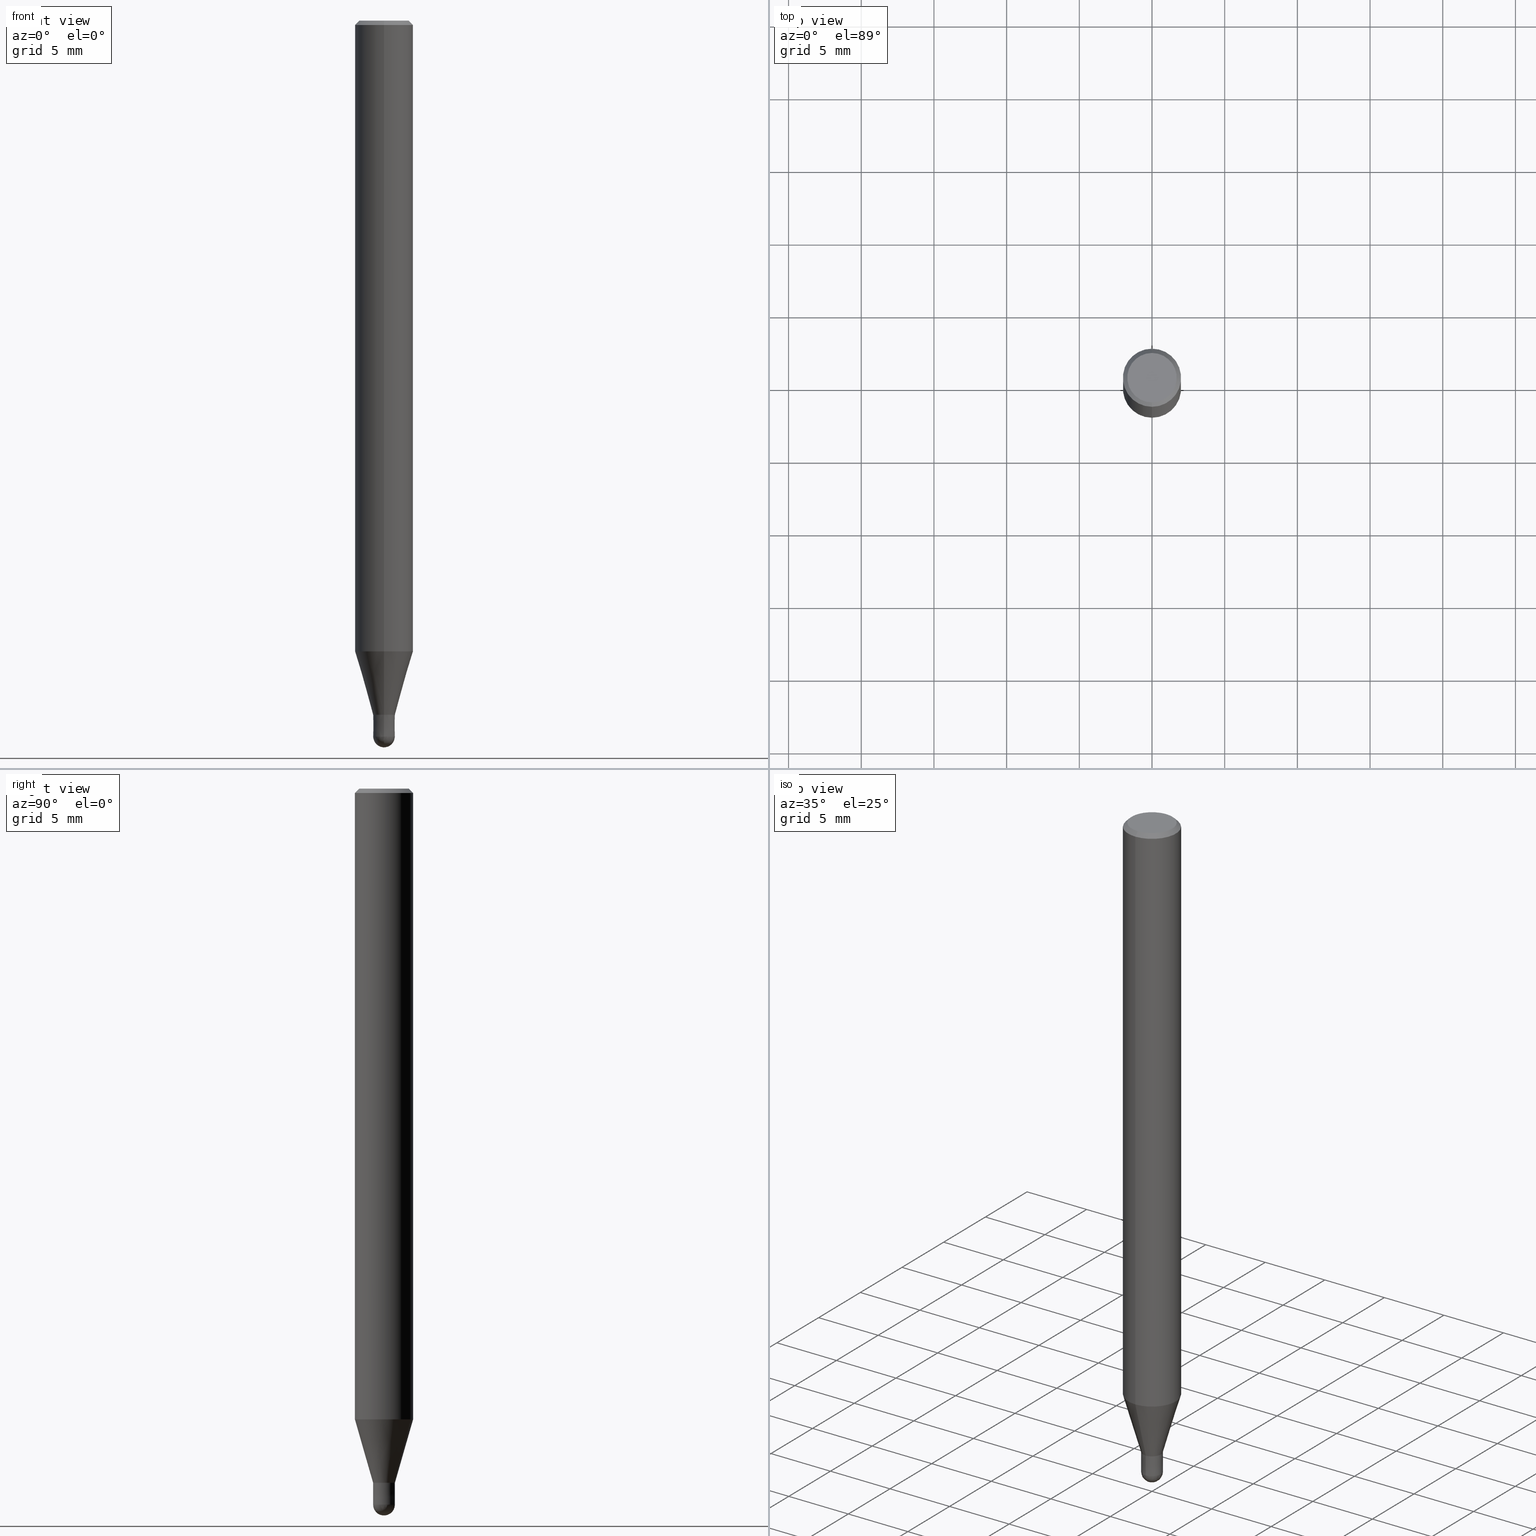
[diagram: canonical four-view strip — front | top / right | iso, engineering-drawing reading convention]
A machine part, canonical four-view strip (front | top / right | iso — engineering-drawing reading convention). The complete STEP part file that produces these views, byte-faithful:
ISO-10303-21;
HEADER;
FILE_DESCRIPTION(('no description'),'unknown implementation level');
FILE_NAME('CFB3015-0225-Huellk.stp','  ',('CIMSOURCE GmbH'),('CADClick - KiM GmbH - www.kimweb.de'),'unknown preprocess','ACIS','unknown authorization');
FILE_SCHEMA(('automotive_design'));
ENDSEC;
DATA;
#1=MECHANICAL_DESIGN_GEOMETRIC_PRESENTATION_REPRESENTATION(' ',(#14,#15,#16,#17,#18,#19,#20,#21,#22,#23,#24,#25,#26,#27,#28,#29,#30,#31,#32,#33,#34,#35,#36,#37,#38,#39,#40,#41,#42,#43,#44,#45,#46,#47,#48,#49,#50,#51,#52,#53,#54,#55,#56,#57,#58,#59,#60,#61,#62,#63,#64,#65,#66),#10);
#2=PRODUCT_DEFINITION_CONTEXT('',#67,'design');
#3=APPLICATION_PROTOCOL_DEFINITION('INTERNATIONAL STANDARD','automotive_design',1994,#67);
#4=PRODUCT_CATEGORY_RELATIONSHIP('NONE','NONE',#68,#69);
#5=SHAPE_DEFINITION_REPRESENTATION(#70,#71);
#6=PRODUCT_DEFINITION_CONTEXT('',#72,'design');
#7=APPLICATION_PROTOCOL_DEFINITION('INTERNATIONAL STANDARD','automotive_design',1994,#72);
#8=PRODUCT_CATEGORY_RELATIONSHIP('NONE','NONE',#73,#74);
#9=SHAPE_DEFINITION_REPRESENTATION(#75,#76);
#10= (GEOMETRIC_REPRESENTATION_CONTEXT(3)GLOBAL_UNCERTAINTY_ASSIGNED_CONTEXT((#79))GLOBAL_UNIT_ASSIGNED_CONTEXT((#81,#82,#83))REPRESENTATION_CONTEXT('NONE','WORKSPACE'));
#14=STYLED_ITEM('',(#85),#86);
#15=STYLED_ITEM('',(#87),#88);
#16=STYLED_ITEM('',(#89),#90);
#17=STYLED_ITEM('',(#91),#92);
#18=STYLED_ITEM('',(#93),#94);
#19=STYLED_ITEM('',(#95),#96);
#20=STYLED_ITEM('',(#97),#98);
#21=STYLED_ITEM('',(#99),#100);
#22=STYLED_ITEM('',(#101),#102);
#23=STYLED_ITEM('',(#103),#104);
#24=STYLED_ITEM('',(#105),#106);
#25=STYLED_ITEM('',(#107),#108);
#26=STYLED_ITEM('',(#109),#110);
#27=STYLED_ITEM('',(#111),#112);
#28=STYLED_ITEM('',(#113),#114);
#29=STYLED_ITEM('',(#115),#116);
#30=STYLED_ITEM('',(#117),#118);
#31=STYLED_ITEM('',(#119),#120);
#32=STYLED_ITEM('',(#121),#122);
#33=STYLED_ITEM('',(#123),#124);
#34=STYLED_ITEM('',(#125),#126);
#35=STYLED_ITEM('',(#127),#128);
#36=STYLED_ITEM('',(#129),#130);
#37=STYLED_ITEM('',(#131),#132);
#38=STYLED_ITEM('',(#133),#134);
#39=STYLED_ITEM('',(#135),#136);
#40=STYLED_ITEM('',(#137),#138);
#41=STYLED_ITEM('',(#139),#140);
#42=STYLED_ITEM('',(#141),#142);
#43=STYLED_ITEM('',(#143),#144);
#44=STYLED_ITEM('',(#145),#146);
#45=STYLED_ITEM('',(#147),#148);
#46=STYLED_ITEM('',(#149),#150);
#47=STYLED_ITEM('',(#151),#152);
#48=STYLED_ITEM('',(#153),#154);
#49=STYLED_ITEM('',(#155),#156);
#50=STYLED_ITEM('',(#157),#158);
#51=STYLED_ITEM('',(#159),#160);
#52=STYLED_ITEM('',(#161),#162);
#53=STYLED_ITEM('',(#163),#164);
#54=STYLED_ITEM('',(#165),#166);
#55=STYLED_ITEM('',(#167),#168);
#56=STYLED_ITEM('',(#169),#170);
#57=STYLED_ITEM('',(#171),#172);
#58=STYLED_ITEM('',(#173),#174);
#59=STYLED_ITEM('',(#175),#176);
#60=STYLED_ITEM('',(#177),#178);
#61=STYLED_ITEM('',(#179),#180);
#62=STYLED_ITEM('',(#181),#182);
#63=STYLED_ITEM('',(#183),#184);
#64=STYLED_ITEM('',(#185),#186);
#65=STYLED_ITEM('',(#187),#188);
#66=STYLED_ITEM('',(#189),#190);
#67=APPLICATION_CONTEXT(' ');
#68=PRODUCT_CATEGORY('part','NONE');
#69=PRODUCT_RELATED_PRODUCT_CATEGORY('detail',' ',(#191));
#70=PRODUCT_DEFINITION_SHAPE('NONE','NONE',#192);
#71=ADVANCED_BREP_SHAPE_REPRESENTATION('1',(#142,#193),#10);
#72=APPLICATION_CONTEXT(' ');
#73=PRODUCT_CATEGORY('part','NONE');
#74=PRODUCT_RELATED_PRODUCT_CATEGORY('detail',' ',(#194));
#75=PRODUCT_DEFINITION_SHAPE('NONE','NONE',#195);
#76=ADVANCED_BREP_SHAPE_REPRESENTATION('2',(#122,#196),#10);
#79=UNCERTAINTY_MEASURE_WITH_UNIT(LENGTH_MEASURE(1.0E-006),#81,'','');
#81= (CONVERSION_BASED_UNIT('MILLIMETRE',#199)LENGTH_UNIT()NAMED_UNIT(#202));
#82= (NAMED_UNIT(#204)PLANE_ANGLE_UNIT()SI_UNIT($,.RADIAN.));
#83= (NAMED_UNIT(#204)SOLID_ANGLE_UNIT()SI_UNIT($,.STERADIAN.));
#85=PRESENTATION_STYLE_ASSIGNMENT((#210));
#86=ADVANCED_FACE('',(#211,#212),#213,.T.);
#87=PRESENTATION_STYLE_ASSIGNMENT((#214));
#88=ADVANCED_FACE('',(#215),#216,.T.);
#89=PRESENTATION_STYLE_ASSIGNMENT((#217));
#90=VERTEX_POINT('',#218);
#91=PRESENTATION_STYLE_ASSIGNMENT((#219));
#92=EDGE_CURVE('',#132,#114,#220,.T.);
#93=PRESENTATION_STYLE_ASSIGNMENT((#221));
#94=EDGE_CURVE('',#180,#162,#222,.T.);
#95=PRESENTATION_STYLE_ASSIGNMENT((#223));
#96=VERTEX_POINT('',#224);
#97=PRESENTATION_STYLE_ASSIGNMENT((#225));
#98=EDGE_CURVE('',#164,#146,#226,.T.);
#99=PRESENTATION_STYLE_ASSIGNMENT((#227));
#100=EDGE_CURVE('',#158,#138,#228,.T.);
#101=PRESENTATION_STYLE_ASSIGNMENT((#229));
#102=ADVANCED_FACE('',(#230),#231,.T.);
#103=PRESENTATION_STYLE_ASSIGNMENT((#232));
#104=EDGE_CURVE('',#152,#164,#233,.T.);
#105=PRESENTATION_STYLE_ASSIGNMENT((#234));
#106=ADVANCED_FACE('',(#235),#236,.T.);
#107=PRESENTATION_STYLE_ASSIGNMENT((#237));
#108=EDGE_CURVE('',#162,#180,#238,.T.);
#109=PRESENTATION_STYLE_ASSIGNMENT((#239));
#110=ADVANCED_FACE('',(#240),#241,.T.);
#111=PRESENTATION_STYLE_ASSIGNMENT((#242));
#112=ADVANCED_FACE('',(#243),#244,.T.);
#113=PRESENTATION_STYLE_ASSIGNMENT((#245));
#114=VERTEX_POINT('',#246);
#115=PRESENTATION_STYLE_ASSIGNMENT((#247));
#116=EDGE_CURVE('',#162,#114,#248,.T.);
#117=PRESENTATION_STYLE_ASSIGNMENT((#249));
#118=EDGE_CURVE('',#168,#132,#250,.T.);
#119=PRESENTATION_STYLE_ASSIGNMENT((#251));
#120=EDGE_CURVE('',#186,#138,#252,.T.);
#121=PRESENTATION_STYLE_ASSIGNMENT((#253));
#122=MANIFOLD_SOLID_BREP('2',#254);
#123=PRESENTATION_STYLE_ASSIGNMENT((#255));
#124=EDGE_CURVE('',#132,#180,#256,.T.);
#125=PRESENTATION_STYLE_ASSIGNMENT((#257));
#126=EDGE_CURVE('',#138,#186,#258,.T.);
#127=PRESENTATION_STYLE_ASSIGNMENT((#259));
#128=EDGE_CURVE('',#158,#190,#260,.T.);
#129=PRESENTATION_STYLE_ASSIGNMENT((#261));
#130=EDGE_CURVE('',#146,#164,#262,.T.);
#131=PRESENTATION_STYLE_ASSIGNMENT((#263));
#132=VERTEX_POINT('',#264);
#133=PRESENTATION_STYLE_ASSIGNMENT((#265));
#134=EDGE_CURVE('',#152,#90,#266,.T.);
#135=PRESENTATION_STYLE_ASSIGNMENT((#267));
#136=EDGE_CURVE('',#152,#90,#268,.T.);
#137=PRESENTATION_STYLE_ASSIGNMENT((#269));
#138=VERTEX_POINT('',#270);
#139=PRESENTATION_STYLE_ASSIGNMENT((#271));
#140=ADVANCED_FACE('',(#272),#273,.T.);
#141=PRESENTATION_STYLE_ASSIGNMENT((#274));
#142=MANIFOLD_SOLID_BREP('1',#275);
#143=PRESENTATION_STYLE_ASSIGNMENT((#276));
#144=EDGE_CURVE('',#114,#132,#277,.T.);
#145=PRESENTATION_STYLE_ASSIGNMENT((#278));
#146=VERTEX_POINT('',#279);
#147=PRESENTATION_STYLE_ASSIGNMENT((#280));
#148=ADVANCED_FACE('',(#281),#282,.T.);
#149=PRESENTATION_STYLE_ASSIGNMENT((#283));
#150=ADVANCED_FACE('',(#284),#285,.T.);
#151=PRESENTATION_STYLE_ASSIGNMENT((#286));
#152=VERTEX_POINT('',#287);
#153=PRESENTATION_STYLE_ASSIGNMENT((#288));
#154=ADVANCED_FACE('',(#289),#290,.T.);
#155=PRESENTATION_STYLE_ASSIGNMENT((#291));
#156=EDGE_CURVE('',#168,#96,#292,.T.);
#157=PRESENTATION_STYLE_ASSIGNMENT((#293));
#158=VERTEX_POINT('',#294);
#159=PRESENTATION_STYLE_ASSIGNMENT((#295));
#160=EDGE_CURVE('',#96,#168,#296,.T.);
#161=PRESENTATION_STYLE_ASSIGNMENT((#297));
#162=VERTEX_POINT('',#298);
#163=PRESENTATION_STYLE_ASSIGNMENT((#299));
#164=VERTEX_POINT('',#300);
#165=PRESENTATION_STYLE_ASSIGNMENT((#301));
#166=ADVANCED_FACE('',(#302),#303,.T.);
#167=PRESENTATION_STYLE_ASSIGNMENT((#304));
#168=VERTEX_POINT('',#305);
#169=PRESENTATION_STYLE_ASSIGNMENT((#306));
#170=EDGE_CURVE('',#186,#190,#307,.T.);
#171=PRESENTATION_STYLE_ASSIGNMENT((#308));
#172=EDGE_CURVE('',#114,#96,#309,.T.);
#173=PRESENTATION_STYLE_ASSIGNMENT((#310));
#174=ADVANCED_FACE('',(#311),#312,.T.);
#175=PRESENTATION_STYLE_ASSIGNMENT((#313));
#176=ADVANCED_FACE('',(#314),#315,.T.);
#177=PRESENTATION_STYLE_ASSIGNMENT((#316));
#178=ADVANCED_FACE('',(#317),#318,.T.);
#179=PRESENTATION_STYLE_ASSIGNMENT((#319));
#180=VERTEX_POINT('',#320);
#181=PRESENTATION_STYLE_ASSIGNMENT((#321));
#182=EDGE_CURVE('',#90,#152,#322,.T.);
#183=PRESENTATION_STYLE_ASSIGNMENT((#323));
#184=EDGE_CURVE('',#190,#158,#324,.T.);
#185=PRESENTATION_STYLE_ASSIGNMENT((#325));
#186=VERTEX_POINT('',#326);
#187=PRESENTATION_STYLE_ASSIGNMENT((#327));
#188=EDGE_CURVE('',#146,#90,#328,.T.);
#189=PRESENTATION_STYLE_ASSIGNMENT((#329));
#190=VERTEX_POINT('',#330);
#191=PRODUCT('1','1','PART-1-DESC',(#331));
#192=PRODUCT_DEFINITION('NONE','NONE',#332,#2);
#193=AXIS2_PLACEMENT_3D('',#333,#334,#335);
#194=PRODUCT('2','2','PART-2-DESC',(#336));
#195=PRODUCT_DEFINITION('NONE','NONE',#337,#6);
#196=AXIS2_PLACEMENT_3D('',#338,#339,#340);
#199=LENGTH_MEASURE_WITH_UNIT(LENGTH_MEASURE(1.0),#341);
#202=DIMENSIONAL_EXPONENTS(1.0,0.0,0.0,0.0,0.0,0.0,0.0);
#204=DIMENSIONAL_EXPONENTS(0.0,0.0,0.0,0.0,0.0,0.0,0.0);
#210=SURFACE_STYLE_USAGE(.BOTH.,#342);
#211=FACE_OUTER_BOUND('',#343,.T.);
#212=FACE_BOUND('',#344,.T.);
#213=PLANE('',#345);
#214=SURFACE_STYLE_USAGE(.BOTH.,#346);
#215=FACE_OUTER_BOUND('',#347,.T.);
#216=SPHERICAL_SURFACE('',#348,0.750000000000001);
#217=POINT_STYLE(' ',#349,POSITIVE_LENGTH_MEASURE(1.0E-006),#350);
#218=CARTESIAN_POINT('',(0.0,0.75,-49.25));
#219=CURVE_STYLE('',#351,POSITIVE_LENGTH_MEASURE(1.0E-006),#352);
#220=CIRCLE('',#353,2.0);
#221=CURVE_STYLE('',#354,POSITIVE_LENGTH_MEASURE(1.0E-006),#355);
#222=CIRCLE('',#356,2.0);
#223=POINT_STYLE(' ',#357,POSITIVE_LENGTH_MEASURE(1.0E-006),#358);
#224=CARTESIAN_POINT('',(2.08183080149804E-016,-1.7,0.0));
#225=CURVE_STYLE('',#359,POSITIVE_LENGTH_MEASURE(1.0E-006),#360);
#226=CIRCLE('',#361,0.7499);
#227=CURVE_STYLE('',#362,POSITIVE_LENGTH_MEASURE(1.0E-006),#363);
#228=LINE('',#364,#365);
#229=SURFACE_STYLE_USAGE(.BOTH.,#366);
#230=FACE_OUTER_BOUND('',#367,.T.);
#231=CONICAL_SURFACE('',#368,1.37495,0.279268973819818);
#232=CURVE_STYLE('',#369,POSITIVE_LENGTH_MEASURE(1.0E-006),#370);
#233=LINE('',#371,#372);
#234=SURFACE_STYLE_USAGE(.BOTH.,#373);
#235=FACE_OUTER_BOUND('',#374,.T.);
#236=CYLINDRICAL_SURFACE('',#375,2.0);
#237=CURVE_STYLE('',#376,POSITIVE_LENGTH_MEASURE(1.0E-006),#377);
#238=CIRCLE('',#378,2.0);
#239=SURFACE_STYLE_USAGE(.BOTH.,#379);
#240=FACE_OUTER_BOUND('',#380,.T.);
#241=CYLINDRICAL_SURFACE('',#381,2.0);
#242=SURFACE_STYLE_USAGE(.BOTH.,#382);
#243=FACE_OUTER_BOUND('',#383,.T.);
#244=PLANE('',#384);
#245=POINT_STYLE(' ',#385,POSITIVE_LENGTH_MEASURE(1.0E-006),#386);
#246=CARTESIAN_POINT('',(2.44921270764475E-016,-2.0,-0.299999999999997));
#247=CURVE_STYLE('',#387,POSITIVE_LENGTH_MEASURE(1.0E-006),#388);
#248=LINE('',#389,#390);
#249=CURVE_STYLE('',#391,POSITIVE_LENGTH_MEASURE(1.0E-006),#392);
#250=LINE('',#393,#394);
#251=CURVE_STYLE('',#395,POSITIVE_LENGTH_MEASURE(1.0E-006),#396);
#252=CIRCLE('',#397,1.99995);
#253=SURFACE_STYLE_USAGE(.BOTH.,#398);
#254=CLOSED_SHELL('',(#174,#166,#178,#154,#88));
#255=CURVE_STYLE('',#399,POSITIVE_LENGTH_MEASURE(1.0E-006),#400);
#256=LINE('',#401,#402);
#257=CURVE_STYLE('',#403,POSITIVE_LENGTH_MEASURE(1.0E-006),#404);
#258=CIRCLE('',#405,1.99995);
#259=CURVE_STYLE('',#406,POSITIVE_LENGTH_MEASURE(1.0E-006),#407);
#260=CIRCLE('',#408,0.74995);
#261=CURVE_STYLE('',#409,POSITIVE_LENGTH_MEASURE(1.0E-006),#410);
#262=CIRCLE('',#411,0.7499);
#263=POINT_STYLE(' ',#412,POSITIVE_LENGTH_MEASURE(1.0E-006),#413);
#264=CARTESIAN_POINT('',(0.0,2.0,-0.299999999999997));
#265=CURVE_STYLE('',#414,POSITIVE_LENGTH_MEASURE(1.0E-006),#415);
#266=CIRCLE('',#416,0.75);
#267=CURVE_STYLE('',#417,POSITIVE_LENGTH_MEASURE(1.0E-006),#418);
#268=CIRCLE('',#419,0.750000000000001);
#269=POINT_STYLE(' ',#420,POSITIVE_LENGTH_MEASURE(1.0E-006),#421);
#270=CARTESIAN_POINT('',(2.44915147732706E-016,-1.99995,-43.391));
#271=SURFACE_STYLE_USAGE(.BOTH.,#422);
#272=FACE_OUTER_BOUND('',#423,.T.);
#273=CONICAL_SURFACE('',#424,1.85,0.785398163397453);
#274=SURFACE_STYLE_USAGE(.BOTH.,#425);
#275=CLOSED_SHELL('',(#102,#106,#140,#86,#150,#176,#110,#148,#112));
#276=CURVE_STYLE('',#426,POSITIVE_LENGTH_MEASURE(1.0E-006),#427);
#277=CIRCLE('',#428,2.0);
#278=POINT_STYLE(' ',#429,POSITIVE_LENGTH_MEASURE(1.0E-006),#430);
#279=CARTESIAN_POINT('',(0.0,0.7499,-47.75));
#280=SURFACE_STYLE_USAGE(.BOTH.,#431);
#281=FACE_OUTER_BOUND('',#432,.T.);
#282=CONICAL_SURFACE('',#433,1.37495,0.279268973819818);
#283=SURFACE_STYLE_USAGE(.BOTH.,#434);
#284=FACE_OUTER_BOUND('',#435,.T.);
#285=PLANE('',#436);
#286=POINT_STYLE(' ',#437,POSITIVE_LENGTH_MEASURE(1.0E-006),#438);
#287=CARTESIAN_POINT('',(9.18454765366783E-017,-0.75,-49.25));
#288=SURFACE_STYLE_USAGE(.BOTH.,#439);
#289=FACE_OUTER_BOUND('',#440,.T.);
#290=CONICAL_SURFACE('',#441,0.74995,6.66666665679679E-005);
#291=CURVE_STYLE('',#442,POSITIVE_LENGTH_MEASURE(1.0E-006),#443);
#292=CIRCLE('',#444,1.7);
#293=POINT_STYLE(' ',#445,POSITIVE_LENGTH_MEASURE(1.0E-006),#446);
#294=CARTESIAN_POINT('',(9.18393535049092E-017,-0.74995,-47.75));
#295=CURVE_STYLE('',#447,POSITIVE_LENGTH_MEASURE(1.0E-006),#448);
#296=CIRCLE('',#449,1.7);
#297=POINT_STYLE(' ',#450,POSITIVE_LENGTH_MEASURE(1.0E-006),#451);
#298=CARTESIAN_POINT('',(2.44921270764475E-016,-2.0,-43.391));
#299=POINT_STYLE(' ',#452,POSITIVE_LENGTH_MEASURE(1.0E-006),#453);
#300=CARTESIAN_POINT('',(9.18332304731401E-017,-0.7499,-47.75));
#301=SURFACE_STYLE_USAGE(.BOTH.,#454);
#302=FACE_OUTER_BOUND('',#455,.T.);
#303=CONICAL_SURFACE('',#456,0.74995,6.66666665679679E-005);
#304=POINT_STYLE(' ',#457,POSITIVE_LENGTH_MEASURE(1.0E-006),#458);
#305=CARTESIAN_POINT('',(0.0,1.7,0.0));
#306=CURVE_STYLE('',#459,POSITIVE_LENGTH_MEASURE(1.0E-006),#460);
#307=LINE('',#461,#462);
#308=CURVE_STYLE('',#463,POSITIVE_LENGTH_MEASURE(1.0E-006),#464);
#309=LINE('',#465,#466);
#310=SURFACE_STYLE_USAGE(.BOTH.,#467);
#311=FACE_OUTER_BOUND('',#468,.T.);
#312=SPHERICAL_SURFACE('',#469,0.750000000000001);
#313=SURFACE_STYLE_USAGE(.BOTH.,#470);
#314=FACE_OUTER_BOUND('',#471,.T.);
#315=CONICAL_SURFACE('',#472,1.85,0.785398163397453);
#316=SURFACE_STYLE_USAGE(.BOTH.,#473);
#317=FACE_OUTER_BOUND('',#474,.T.);
#318=PLANE('',#475);
#319=POINT_STYLE(' ',#476,POSITIVE_LENGTH_MEASURE(1.0E-006),#477);
#320=CARTESIAN_POINT('',(0.0,2.0,-43.391));
#321=CURVE_STYLE('',#478,POSITIVE_LENGTH_MEASURE(1.0E-006),#479);
#322=CIRCLE('',#480,0.75);
#323=CURVE_STYLE('',#481,POSITIVE_LENGTH_MEASURE(1.0E-006),#482);
#324=CIRCLE('',#483,0.74995);
#325=POINT_STYLE(' ',#484,POSITIVE_LENGTH_MEASURE(1.0E-006),#485);
#326=CARTESIAN_POINT('',(0.0,1.99995,-43.391));
#327=CURVE_STYLE('',#486,POSITIVE_LENGTH_MEASURE(1.0E-006),#487);
#328=LINE('',#488,#489);
#329=POINT_STYLE(' ',#490,POSITIVE_LENGTH_MEASURE(1.0E-006),#491);
#330=CARTESIAN_POINT('',(0.0,0.74995,-47.75));
#331=PRODUCT_CONTEXT('',#67,'mechanical');
#332=PRODUCT_DEFINITION_FORMATION_WITH_SPECIFIED_SOURCE(' ','NONE',#191,.NOT_KNOWN.);
#333=CARTESIAN_POINT('',(0.0,0.0,0.0));
#334=DIRECTION('',(0.0,0.0,1.0));
#335=DIRECTION('',(1.0,0.0,0.0));
#336=PRODUCT_CONTEXT('',#72,'mechanical');
#337=PRODUCT_DEFINITION_FORMATION_WITH_SPECIFIED_SOURCE(' ','NONE',#194,.NOT_KNOWN.);
#338=CARTESIAN_POINT('',(0.0,0.0,0.0));
#339=DIRECTION('',(0.0,0.0,1.0));
#340=DIRECTION('',(1.0,0.0,0.0));
#341= (NAMED_UNIT(#202)LENGTH_UNIT()SI_UNIT(.MILLI.,.METRE.));
#342=SURFACE_SIDE_STYLE('',(#493));
#343=EDGE_LOOP('',(#494,#495));
#344=EDGE_LOOP('',(#496,#497));
#345=AXIS2_PLACEMENT_3D('',#498,#499,#500);
#346=SURFACE_SIDE_STYLE('',(#501));
#347=EDGE_LOOP('',(#502,#503));
#348=AXIS2_PLACEMENT_3D('',#504,#505,#506);
#349=PRE_DEFINED_MARKER('');
#350=COLOUR_RGB('',0.800000011920929,0.800000011920929,0.800000011920929);
#351=DRAUGHTING_PRE_DEFINED_CURVE_FONT('continuous');
#352=COLOUR_RGB('',0.498039215803146,0.498039215803146,0.498039215803146);
#353=AXIS2_PLACEMENT_3D('',#507,#508,#509);
#354=DRAUGHTING_PRE_DEFINED_CURVE_FONT('continuous');
#355=COLOUR_RGB('',0.498039215803146,0.498039215803146,0.498039215803146);
#356=AXIS2_PLACEMENT_3D('',#510,#511,#512);
#357=PRE_DEFINED_MARKER('');
#358=COLOUR_RGB('',0.498039215803146,0.498039215803146,0.498039215803146);
#359=DRAUGHTING_PRE_DEFINED_CURVE_FONT('continuous');
#360=COLOUR_RGB('',0.800000011920929,0.800000011920929,0.800000011920929);
#361=AXIS2_PLACEMENT_3D('',#513,#514,#515);
#362=DRAUGHTING_PRE_DEFINED_CURVE_FONT('continuous');
#363=COLOUR_RGB('',0.498039215803146,0.498039215803146,0.498039215803146);
#364=CARTESIAN_POINT('',(1.68377250618808E-016,-1.37495,-45.5705));
#365=VECTOR('',#516,1.0);
#366=SURFACE_SIDE_STYLE('',(#517));
#367=EDGE_LOOP('',(#518,#519,#520,#521));
#368=AXIS2_PLACEMENT_3D('',#522,#523,#524);
#369=DRAUGHTING_PRE_DEFINED_CURVE_FONT('continuous');
#370=COLOUR_RGB('',0.800000011920929,0.800000011920929,0.800000011920929);
#371=CARTESIAN_POINT('',(9.18393535049092E-017,-0.74995,-48.5));
#372=VECTOR('',#525,1.0);
#373=SURFACE_SIDE_STYLE('',(#526));
#374=EDGE_LOOP('',(#527,#528,#529,#530));
#375=AXIS2_PLACEMENT_3D('',#531,#532,#533);
#376=DRAUGHTING_PRE_DEFINED_CURVE_FONT('continuous');
#377=COLOUR_RGB('',0.498039215803146,0.498039215803146,0.498039215803146);
#378=AXIS2_PLACEMENT_3D('',#534,#535,#536);
#379=SURFACE_SIDE_STYLE('',(#537));
#380=EDGE_LOOP('',(#538,#539,#540,#541));
#381=AXIS2_PLACEMENT_3D('',#542,#543,#544);
#382=SURFACE_SIDE_STYLE('',(#545));
#383=EDGE_LOOP('',(#546,#547));
#384=AXIS2_PLACEMENT_3D('',#548,#549,#550);
#385=PRE_DEFINED_MARKER('');
#386=COLOUR_RGB('',0.498039215803146,0.498039215803146,0.498039215803146);
#387=DRAUGHTING_PRE_DEFINED_CURVE_FONT('continuous');
#388=COLOUR_RGB('',0.498039215803146,0.498039215803146,0.498039215803146);
#389=CARTESIAN_POINT('',(2.44921270764475E-016,-2.0,-21.8455));
#390=VECTOR('',#551,1.0);
#391=DRAUGHTING_PRE_DEFINED_CURVE_FONT('continuous');
#392=COLOUR_RGB('',0.498039215803146,0.498039215803146,0.498039215803146);
#393=CARTESIAN_POINT('',(-2.2655217545714E-016,1.85,-0.149999999999999));
#394=VECTOR('',#552,1.0);
#395=DRAUGHTING_PRE_DEFINED_CURVE_FONT('continuous');
#396=COLOUR_RGB('',0.498039215803146,0.498039215803146,0.498039215803146);
#397=AXIS2_PLACEMENT_3D('',#553,#554,#555);
#398=SURFACE_SIDE_STYLE('',(#556));
#399=DRAUGHTING_PRE_DEFINED_CURVE_FONT('continuous');
#400=COLOUR_RGB('',0.498039215803146,0.498039215803146,0.498039215803146);
#401=CARTESIAN_POINT('',(-2.44921270764475E-016,2.0,-21.8455));
#402=VECTOR('',#557,1.0);
#403=DRAUGHTING_PRE_DEFINED_CURVE_FONT('continuous');
#404=COLOUR_RGB('',0.498039215803146,0.498039215803146,0.498039215803146);
#405=AXIS2_PLACEMENT_3D('',#558,#559,#560);
#406=DRAUGHTING_PRE_DEFINED_CURVE_FONT('continuous');
#407=COLOUR_RGB('',0.498039215803146,0.498039215803146,0.498039215803146);
#408=AXIS2_PLACEMENT_3D('',#561,#562,#563);
#409=DRAUGHTING_PRE_DEFINED_CURVE_FONT('continuous');
#410=COLOUR_RGB('',0.800000011920929,0.800000011920929,0.800000011920929);
#411=AXIS2_PLACEMENT_3D('',#564,#565,#566);
#412=PRE_DEFINED_MARKER('');
#413=COLOUR_RGB('',0.498039215803146,0.498039215803146,0.498039215803146);
#414=DRAUGHTING_PRE_DEFINED_CURVE_FONT('continuous');
#415=COLOUR_RGB('',0.800000011920929,0.800000011920929,0.800000011920929);
#416=AXIS2_PLACEMENT_3D('',#567,#568,#569);
#417=DRAUGHTING_PRE_DEFINED_CURVE_FONT('continuous');
#418=COLOUR_RGB('',0.800000011920929,0.800000011920929,0.800000011920929);
#419=AXIS2_PLACEMENT_3D('',#570,#571,#572);
#420=PRE_DEFINED_MARKER('');
#421=COLOUR_RGB('',0.498039215803146,0.498039215803146,0.498039215803146);
#422=SURFACE_SIDE_STYLE('',(#573));
#423=EDGE_LOOP('',(#574,#575,#576,#577));
#424=AXIS2_PLACEMENT_3D('',#578,#579,#580);
#425=SURFACE_SIDE_STYLE('',(#581));
#426=DRAUGHTING_PRE_DEFINED_CURVE_FONT('continuous');
#427=COLOUR_RGB('',0.498039215803146,0.498039215803146,0.498039215803146);
#428=AXIS2_PLACEMENT_3D('',#582,#583,#584);
#429=PRE_DEFINED_MARKER('');
#430=COLOUR_RGB('',0.800000011920929,0.800000011920929,0.800000011920929);
#431=SURFACE_SIDE_STYLE('',(#585));
#432=EDGE_LOOP('',(#586,#587,#588,#589));
#433=AXIS2_PLACEMENT_3D('',#590,#591,#592);
#434=SURFACE_SIDE_STYLE('',(#593));
#435=EDGE_LOOP('',(#594,#595));
#436=AXIS2_PLACEMENT_3D('',#596,#597,#598);
#437=PRE_DEFINED_MARKER('');
#438=COLOUR_RGB('',0.800000011920929,0.800000011920929,0.800000011920929);
#439=SURFACE_SIDE_STYLE('',(#599));
#440=EDGE_LOOP('',(#600,#601,#602,#603));
#441=AXIS2_PLACEMENT_3D('',#604,#605,#606);
#442=DRAUGHTING_PRE_DEFINED_CURVE_FONT('continuous');
#443=COLOUR_RGB('',0.498039215803146,0.498039215803146,0.498039215803146);
#444=AXIS2_PLACEMENT_3D('',#607,#608,#609);
#445=PRE_DEFINED_MARKER('');
#446=COLOUR_RGB('',0.498039215803146,0.498039215803146,0.498039215803146);
#447=DRAUGHTING_PRE_DEFINED_CURVE_FONT('continuous');
#448=COLOUR_RGB('',0.498039215803146,0.498039215803146,0.498039215803146);
#449=AXIS2_PLACEMENT_3D('',#610,#611,#612);
#450=PRE_DEFINED_MARKER('');
#451=COLOUR_RGB('',0.498039215803146,0.498039215803146,0.498039215803146);
#452=PRE_DEFINED_MARKER('');
#453=COLOUR_RGB('',0.800000011920929,0.800000011920929,0.800000011920929);
#454=SURFACE_SIDE_STYLE('',(#613));
#455=EDGE_LOOP('',(#614,#615,#616,#617));
#456=AXIS2_PLACEMENT_3D('',#618,#619,#620);
#457=PRE_DEFINED_MARKER('');
#458=COLOUR_RGB('',0.498039215803146,0.498039215803146,0.498039215803146);
#459=DRAUGHTING_PRE_DEFINED_CURVE_FONT('continuous');
#460=COLOUR_RGB('',0.498039215803146,0.498039215803146,0.498039215803146);
#461=CARTESIAN_POINT('',(-1.68377250618808E-016,1.37495,-45.5705));
#462=VECTOR('',#621,1.0);
#463=DRAUGHTING_PRE_DEFINED_CURVE_FONT('continuous');
#464=COLOUR_RGB('',0.498039215803146,0.498039215803146,0.498039215803146);
#465=CARTESIAN_POINT('',(2.2655217545714E-016,-1.85,-0.149999999999999));
#466=VECTOR('',#622,1.0);
#467=SURFACE_SIDE_STYLE('',(#623));
#468=EDGE_LOOP('',(#624,#625));
#469=AXIS2_PLACEMENT_3D('',#626,#627,#628);
#470=SURFACE_SIDE_STYLE('',(#629));
#471=EDGE_LOOP('',(#630,#631,#632,#633));
#472=AXIS2_PLACEMENT_3D('',#634,#635,#636);
#473=SURFACE_SIDE_STYLE('',(#637));
#474=EDGE_LOOP('',(#638,#639));
#475=AXIS2_PLACEMENT_3D('',#640,#641,#642);
#476=PRE_DEFINED_MARKER('');
#477=COLOUR_RGB('',0.498039215803146,0.498039215803146,0.498039215803146);
#478=DRAUGHTING_PRE_DEFINED_CURVE_FONT('continuous');
#479=COLOUR_RGB('',0.800000011920929,0.800000011920929,0.800000011920929);
#480=AXIS2_PLACEMENT_3D('',#643,#644,#645);
#481=DRAUGHTING_PRE_DEFINED_CURVE_FONT('continuous');
#482=COLOUR_RGB('',0.498039215803146,0.498039215803146,0.498039215803146);
#483=AXIS2_PLACEMENT_3D('',#646,#647,#648);
#484=PRE_DEFINED_MARKER('');
#485=COLOUR_RGB('',0.498039215803146,0.498039215803146,0.498039215803146);
#486=DRAUGHTING_PRE_DEFINED_CURVE_FONT('continuous');
#487=COLOUR_RGB('',0.800000011920929,0.800000011920929,0.800000011920929);
#488=CARTESIAN_POINT('',(-9.18393535049091E-017,0.74995,-48.5));
#489=VECTOR('',#649,1.0);
#490=PRE_DEFINED_MARKER('');
#491=COLOUR_RGB('',0.498039215803146,0.498039215803146,0.498039215803146);
#493=SURFACE_STYLE_FILL_AREA(#650);
#494=ORIENTED_EDGE('',*,*,#94,.T.);
#495=ORIENTED_EDGE('',*,*,#108,.T.);
#496=ORIENTED_EDGE('',*,*,#120,.F.);
#497=ORIENTED_EDGE('',*,*,#126,.F.);
#498=CARTESIAN_POINT('',(0.0,1.0,-43.391));
#499=DIRECTION('',(0.0,0.0,-1.0));
#500=DIRECTION('',(0.0,1.0,0.0));
#501=SURFACE_STYLE_FILL_AREA(#651);
#502=ORIENTED_EDGE('',*,*,#136,.T.);
#503=ORIENTED_EDGE('',*,*,#182,.T.);
#504=CARTESIAN_POINT('',(0.0,0.0,-49.25));
#505=DIRECTION('',(0.0,1.0,0.0));
#506=DIRECTION('',(0.0,0.0,-1.0));
#507=CARTESIAN_POINT('',(0.0,0.0,-0.299999999999997));
#508=DIRECTION('',(0.0,0.0,-1.0));
#509=DIRECTION('',(0.0,1.0,0.0));
#510=CARTESIAN_POINT('',(0.0,0.0,-43.391));
#511=DIRECTION('',(0.0,0.0,-1.0));
#512=DIRECTION('',(0.0,1.0,0.0));
#513=CARTESIAN_POINT('',(0.0,0.0,-47.75));
#514=DIRECTION('',(0.0,0.0,-1.0));
#515=DIRECTION('',(0.0,1.0,0.0));
#516=DIRECTION('',(3.375664374138E-017,-0.27565301809855,0.961257204713265));
#517=SURFACE_STYLE_FILL_AREA(#652);
#518=ORIENTED_EDGE('',*,*,#170,.F.);
#519=ORIENTED_EDGE('',*,*,#120,.T.);
#520=ORIENTED_EDGE('',*,*,#100,.F.);
#521=ORIENTED_EDGE('',*,*,#184,.F.);
#522=CARTESIAN_POINT('',(0.0,0.0,-45.5705));
#523=DIRECTION('',(-0.0,-0.0,1.0));
#524=DIRECTION('',(0.0,1.0,0.0));
#525=DIRECTION('',(-8.16404234068169E-021,6.66666665185852E-005,0.999999997777778));
#526=SURFACE_STYLE_FILL_AREA(#653);
#527=ORIENTED_EDGE('',*,*,#124,.F.);
#528=ORIENTED_EDGE('',*,*,#92,.T.);
#529=ORIENTED_EDGE('',*,*,#116,.F.);
#530=ORIENTED_EDGE('',*,*,#94,.F.);
#531=CARTESIAN_POINT('',(0.0,0.0,-21.8455));
#532=DIRECTION('',(-0.0,-0.0,1.0));
#533=DIRECTION('',(0.0,1.0,0.0));
#534=CARTESIAN_POINT('',(0.0,0.0,-43.391));
#535=DIRECTION('',(0.0,0.0,-1.0));
#536=DIRECTION('',(0.0,1.0,0.0));
#537=SURFACE_STYLE_FILL_AREA(#654);
#538=ORIENTED_EDGE('',*,*,#124,.T.);
#539=ORIENTED_EDGE('',*,*,#108,.F.);
#540=ORIENTED_EDGE('',*,*,#116,.T.);
#541=ORIENTED_EDGE('',*,*,#144,.T.);
#542=CARTESIAN_POINT('',(0.0,0.0,-21.8455));
#543=DIRECTION('',(-0.0,-0.0,1.0));
#544=DIRECTION('',(0.0,1.0,0.0));
#545=SURFACE_STYLE_FILL_AREA(#655);
#546=ORIENTED_EDGE('',*,*,#184,.T.);
#547=ORIENTED_EDGE('',*,*,#128,.T.);
#548=CARTESIAN_POINT('',(0.0,0.374975,-47.75));
#549=DIRECTION('',(0.0,0.0,-1.0));
#550=DIRECTION('',(0.0,1.0,0.0));
#551=DIRECTION('',(-0.0,-0.0,1.0));
#552=DIRECTION('',(-8.6592745707194E-017,0.707106781186551,-0.707106781186544));
#553=CARTESIAN_POINT('',(0.0,0.0,-43.391));
#554=DIRECTION('',(0.0,0.0,-1.0));
#555=DIRECTION('',(0.0,1.0,0.0));
#556=SURFACE_STYLE_FILL_AREA(#656);
#557=DIRECTION('',(0.0,0.0,-1.0));
#558=CARTESIAN_POINT('',(0.0,0.0,-43.391));
#559=DIRECTION('',(0.0,0.0,-1.0));
#560=DIRECTION('',(0.0,1.0,0.0));
#561=CARTESIAN_POINT('',(0.0,0.0,-47.75));
#562=DIRECTION('',(0.0,0.0,-1.0));
#563=DIRECTION('',(0.0,1.0,0.0));
#564=CARTESIAN_POINT('',(0.0,0.0,-47.75));
#565=DIRECTION('',(0.0,0.0,-1.0));
#566=DIRECTION('',(0.0,1.0,0.0));
#567=CARTESIAN_POINT('',(0.0,0.0,-49.25));
#568=DIRECTION('',(0.0,0.0,-1.0));
#569=DIRECTION('',(0.0,1.0,0.0));
#570=CARTESIAN_POINT('',(0.0,0.0,-49.25));
#571=DIRECTION('',(1.0,0.0,1.22460635382238E-016));
#572=DIRECTION('',(-1.22460635382238E-016,0.0,1.0));
#573=SURFACE_STYLE_FILL_AREA(#657);
#574=ORIENTED_EDGE('',*,*,#118,.F.);
#575=ORIENTED_EDGE('',*,*,#156,.T.);
#576=ORIENTED_EDGE('',*,*,#172,.F.);
#577=ORIENTED_EDGE('',*,*,#92,.F.);
#578=CARTESIAN_POINT('',(0.0,0.0,-0.149999999999999));
#579=DIRECTION('',(0.0,-0.0,-1.0));
#580=DIRECTION('',(0.0,1.0,0.0));
#581=SURFACE_STYLE_FILL_AREA(#658);
#582=CARTESIAN_POINT('',(0.0,0.0,-0.299999999999997));
#583=DIRECTION('',(0.0,0.0,-1.0));
#584=DIRECTION('',(0.0,1.0,0.0));
#585=SURFACE_STYLE_FILL_AREA(#659);
#586=ORIENTED_EDGE('',*,*,#170,.T.);
#587=ORIENTED_EDGE('',*,*,#128,.F.);
#588=ORIENTED_EDGE('',*,*,#100,.T.);
#589=ORIENTED_EDGE('',*,*,#126,.T.);
#590=CARTESIAN_POINT('',(0.0,0.0,-45.5705));
#591=DIRECTION('',(-0.0,-0.0,1.0));
#592=DIRECTION('',(0.0,1.0,0.0));
#593=SURFACE_STYLE_FILL_AREA(#660);
#594=ORIENTED_EDGE('',*,*,#156,.F.);
#595=ORIENTED_EDGE('',*,*,#160,.F.);
#596=CARTESIAN_POINT('',(0.0,0.85,0.0));
#597=DIRECTION('',(-0.0,0.0,1.0));
#598=DIRECTION('',(0.0,-1.0,0.0));
#599=SURFACE_STYLE_FILL_AREA(#661);
#600=ORIENTED_EDGE('',*,*,#188,.T.);
#601=ORIENTED_EDGE('',*,*,#134,.F.);
#602=ORIENTED_EDGE('',*,*,#104,.T.);
#603=ORIENTED_EDGE('',*,*,#98,.T.);
#604=CARTESIAN_POINT('',(0.0,0.0,-48.5));
#605=DIRECTION('',(0.0,-0.0,-1.0));
#606=DIRECTION('',(0.0,1.0,0.0));
#607=CARTESIAN_POINT('',(0.0,0.0,0.0));
#608=DIRECTION('',(0.0,0.0,-1.0));
#609=DIRECTION('',(0.0,1.0,0.0));
#610=CARTESIAN_POINT('',(0.0,0.0,0.0));
#611=DIRECTION('',(0.0,0.0,-1.0));
#612=DIRECTION('',(0.0,1.0,0.0));
#613=SURFACE_STYLE_FILL_AREA(#662);
#614=ORIENTED_EDGE('',*,*,#188,.F.);
#615=ORIENTED_EDGE('',*,*,#130,.T.);
#616=ORIENTED_EDGE('',*,*,#104,.F.);
#617=ORIENTED_EDGE('',*,*,#182,.F.);
#618=CARTESIAN_POINT('',(0.0,0.0,-48.5));
#619=DIRECTION('',(0.0,-0.0,-1.0));
#620=DIRECTION('',(0.0,1.0,0.0));
#621=DIRECTION('',(3.375664374138E-017,-0.27565301809855,-0.961257204713265));
#622=DIRECTION('',(-8.6592745707194E-017,0.707106781186551,0.707106781186544));
#623=SURFACE_STYLE_FILL_AREA(#663);
#624=ORIENTED_EDGE('',*,*,#136,.F.);
#625=ORIENTED_EDGE('',*,*,#134,.T.);
#626=CARTESIAN_POINT('',(0.0,0.0,-49.25));
#627=DIRECTION('',(0.0,1.0,0.0));
#628=DIRECTION('',(0.0,0.0,-1.0));
#629=SURFACE_STYLE_FILL_AREA(#664);
#630=ORIENTED_EDGE('',*,*,#118,.T.);
#631=ORIENTED_EDGE('',*,*,#144,.F.);
#632=ORIENTED_EDGE('',*,*,#172,.T.);
#633=ORIENTED_EDGE('',*,*,#160,.T.);
#634=CARTESIAN_POINT('',(0.0,0.0,-0.149999999999999));
#635=DIRECTION('',(0.0,-0.0,-1.0));
#636=DIRECTION('',(0.0,1.0,0.0));
#637=SURFACE_STYLE_FILL_AREA(#665);
#638=ORIENTED_EDGE('',*,*,#130,.F.);
#639=ORIENTED_EDGE('',*,*,#98,.F.);
#640=CARTESIAN_POINT('',(0.0,0.37495,-47.75));
#641=DIRECTION('',(-0.0,0.0,1.0));
#642=DIRECTION('',(0.0,-1.0,0.0));
#643=CARTESIAN_POINT('',(0.0,0.0,-49.25));
#644=DIRECTION('',(0.0,0.0,-1.0));
#645=DIRECTION('',(0.0,1.0,0.0));
#646=CARTESIAN_POINT('',(0.0,0.0,-47.75));
#647=DIRECTION('',(0.0,0.0,-1.0));
#648=DIRECTION('',(0.0,1.0,0.0));
#649=DIRECTION('',(-8.16404234068169E-021,6.66666665185852E-005,-0.999999997777778));
#650=FILL_AREA_STYLE('',(#666));
#651=FILL_AREA_STYLE('',(#667));
#652=FILL_AREA_STYLE('',(#668));
#653=FILL_AREA_STYLE('',(#669));
#654=FILL_AREA_STYLE('',(#670));
#655=FILL_AREA_STYLE('',(#671));
#656=FILL_AREA_STYLE('',(#672));
#657=FILL_AREA_STYLE('',(#673));
#658=FILL_AREA_STYLE('',(#674));
#659=FILL_AREA_STYLE('',(#675));
#660=FILL_AREA_STYLE('',(#676));
#661=FILL_AREA_STYLE('',(#677));
#662=FILL_AREA_STYLE('',(#678));
#663=FILL_AREA_STYLE('',(#679));
#664=FILL_AREA_STYLE('',(#680));
#665=FILL_AREA_STYLE('',(#681));
#666=FILL_AREA_STYLE_COLOUR('',#682);
#667=FILL_AREA_STYLE_COLOUR('',#683);
#668=FILL_AREA_STYLE_COLOUR('',#684);
#669=FILL_AREA_STYLE_COLOUR('',#685);
#670=FILL_AREA_STYLE_COLOUR('',#686);
#671=FILL_AREA_STYLE_COLOUR('',#687);
#672=FILL_AREA_STYLE_COLOUR('',#688);
#673=FILL_AREA_STYLE_COLOUR('',#689);
#674=FILL_AREA_STYLE_COLOUR('',#690);
#675=FILL_AREA_STYLE_COLOUR('',#691);
#676=FILL_AREA_STYLE_COLOUR('',#692);
#677=FILL_AREA_STYLE_COLOUR('',#693);
#678=FILL_AREA_STYLE_COLOUR('',#694);
#679=FILL_AREA_STYLE_COLOUR('',#695);
#680=FILL_AREA_STYLE_COLOUR('',#696);
#681=FILL_AREA_STYLE_COLOUR('',#697);
#682=COLOUR_RGB('',0.498039215803146,0.498039215803146,0.498039215803146);
#683=COLOUR_RGB('',0.800000011920929,0.800000011920929,0.800000011920929);
#684=COLOUR_RGB('',0.498039215803146,0.498039215803146,0.498039215803146);
#685=COLOUR_RGB('',0.498039215803146,0.498039215803146,0.498039215803146);
#686=COLOUR_RGB('',0.498039215803146,0.498039215803146,0.498039215803146);
#687=COLOUR_RGB('',0.498039215803146,0.498039215803146,0.498039215803146);
#688=COLOUR_RGB('',0.800000011920929,0.800000011920929,0.800000011920929);
#689=COLOUR_RGB('',0.498039215803146,0.498039215803146,0.498039215803146);
#690=COLOUR_RGB('',0.498039215803146,0.498039215803146,0.498039215803146);
#691=COLOUR_RGB('',0.498039215803146,0.498039215803146,0.498039215803146);
#692=COLOUR_RGB('',0.498039215803146,0.498039215803146,0.498039215803146);
#693=COLOUR_RGB('',0.800000011920929,0.800000011920929,0.800000011920929);
#694=COLOUR_RGB('',0.800000011920929,0.800000011920929,0.800000011920929);
#695=COLOUR_RGB('',0.800000011920929,0.800000011920929,0.800000011920929);
#696=COLOUR_RGB('',0.498039215803146,0.498039215803146,0.498039215803146);
#697=COLOUR_RGB('',0.800000011920929,0.800000011920929,0.800000011920929);
#698=AXIS2_PLACEMENT_3D('PCS',#699,#700,#701);
#699=CARTESIAN_POINT('',(0.0,0.0,0.0));
#700=DIRECTION('',(0.0,0.0,1.0));
#701=DIRECTION('',(1.0,0.0,0.0));
#702=AXIS2_PLACEMENT_3D('CIP',#703,#704,#705);
#703=CARTESIAN_POINT('',(0.0,0.0,-50.0));
#704=DIRECTION('',(0.0,0.0,1.0));
#705=DIRECTION('',(1.0,0.0,0.0));
#706=AXIS2_PLACEMENT_3D('CRP',#707,#708,#709);
#707=CARTESIAN_POINT('',(-0.75,0.0,-50.0));
#708=DIRECTION('',(0.0,0.0,1.0));
#709=DIRECTION('',(1.0,0.0,0.0));
#710=AXIS2_PLACEMENT_3D('MCS',#711,#712,#713);
#711=CARTESIAN_POINT('',(0.0,0.0,-43.391));
#712=DIRECTION('',(0.0,0.0,1.0));
#713=DIRECTION('',(1.0,0.0,0.0));
#714=CONSTRUCTIVE_GEOMETRY_REPRESENTATION_RELATIONSHIP('coordinate systems',$,#71,#715);
#715=CONSTRUCTIVE_GEOMETRY_REPRESENTATION('coordinate systems',(#698,#702,#706,#710),#10);
ENDSEC;
END-ISO-10303-21;
